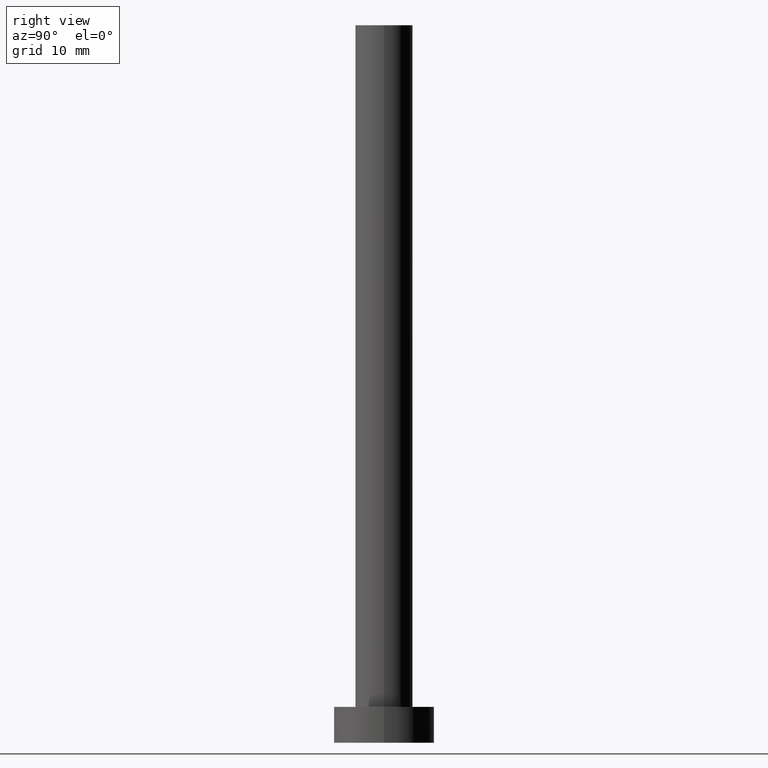
[diagram: clean part render]
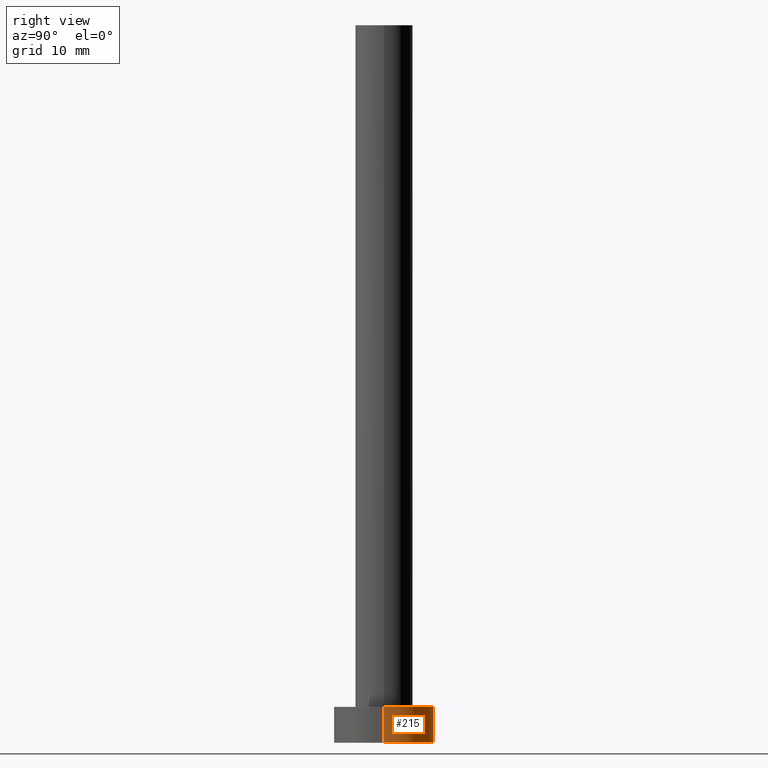
[diagram: same view with one face highlighted and labeled with its STEP entity id]
A machine part, right view. The second image highlights one B-rep face of the part: STEP entity #215.
In plain terms, the highlighted cylindrical surface (partial cylindrical patch) has radius 7 mm, axis along (-0, -0, -1).
Its self-contained STEP definition (entity closure, byte-faithful):
#2 = VECTOR ( 'NONE', #110, 1000.000000000000000 ) ;
#6 = CARTESIAN_POINT ( 'NONE',  ( 7.000000000000000000, 8.572527594031473190E-16, 0.000000000000000000 ) ) ;
#8 = LINE ( 'NONE', #171, #2 ) ;
#20 = CARTESIAN_POINT ( 'NONE',  ( 0.000000000000000000, 0.000000000000000000, 5.000000000000000000 ) ) ;
#27 = CARTESIAN_POINT ( 'NONE',  ( 0.000000000000000000, 0.000000000000000000, 5.000000000000000000 ) ) ;
#41 = AXIS2_PLACEMENT_3D ( 'NONE', #20, #67, #43 ) ;
#43 = DIRECTION ( 'NONE',  ( -1.000000000000000000, 0.000000000000000000, 0.000000000000000000 ) ) ;
#46 = CARTESIAN_POINT ( 'NONE',  ( -7.000000000000000000, 0.000000000000000000, 5.000000000000000000 ) ) ;
#60 = VERTEX_POINT ( 'NONE', #77 ) ;
#67 = DIRECTION ( 'NONE',  ( -0.000000000000000000, -0.000000000000000000, -1.000000000000000000 ) ) ;
#76 = CARTESIAN_POINT ( 'NONE',  ( -7.000000000000000000, 0.000000000000000000, 5.000000000000000000 ) ) ;
#77 = CARTESIAN_POINT ( 'NONE',  ( 7.000000000000000000, 8.572527594031473190E-16, 5.000000000000000000 ) ) ;
#78 = EDGE_CURVE ( 'NONE', #60, #115, #8, .T. ) ;
#79 = VECTOR ( 'NONE', #107, 1000.000000000000000 ) ;
#107 = DIRECTION ( 'NONE',  ( -0.000000000000000000, -0.000000000000000000, -1.000000000000000000 ) ) ;
#109 = CIRCLE ( 'NONE', #145, 7.000000000000000000 ) ;
#110 = DIRECTION ( 'NONE',  ( -0.000000000000000000, -0.000000000000000000, -1.000000000000000000 ) ) ;
#111 = CARTESIAN_POINT ( 'NONE',  ( 0.000000000000000000, 0.000000000000000000, 0.000000000000000000 ) ) ;
#112 = DIRECTION ( 'NONE',  ( 0.000000000000000000, 0.000000000000000000, 1.000000000000000000 ) ) ;
#115 = VERTEX_POINT ( 'NONE', #6 ) ;
#116 = ORIENTED_EDGE ( 'NONE', *, *, #240, .F. ) ;
#127 = AXIS2_PLACEMENT_3D ( 'NONE', #27, #139, #210 ) ;
#135 = CYLINDRICAL_SURFACE ( 'NONE', #41, 7.000000000000000000 ) ;
#139 = DIRECTION ( 'NONE',  ( 0.000000000000000000, 0.000000000000000000, 1.000000000000000000 ) ) ;
#145 = AXIS2_PLACEMENT_3D ( 'NONE', #111, #112, #241 ) ;
#158 = FACE_OUTER_BOUND ( 'NONE', #250, .T. ) ;
#160 = EDGE_CURVE ( 'NONE', #115, #228, #109, .T. ) ;
#171 = CARTESIAN_POINT ( 'NONE',  ( 7.000000000000000000, 8.572527594031473190E-16, 5.000000000000000000 ) ) ;
#181 = VERTEX_POINT ( 'NONE', #76 ) ;
#185 = LINE ( 'NONE', #46, #79 ) ;
#194 = ORIENTED_EDGE ( 'NONE', *, *, #230, .F. ) ;
#210 = DIRECTION ( 'NONE',  ( 1.000000000000000000, 0.000000000000000000, 0.000000000000000000 ) ) ;
#215 = ADVANCED_FACE ( 'NONE', ( #158 ), #135, .T. ) ;
#227 = ORIENTED_EDGE ( 'NONE', *, *, #78, .T. ) ;
#228 = VERTEX_POINT ( 'NONE', #229 ) ;
#229 = CARTESIAN_POINT ( 'NONE',  ( -7.000000000000000000, 0.000000000000000000, 0.000000000000000000 ) ) ;
#230 = EDGE_CURVE ( 'NONE', #181, #228, #185, .T. ) ;
#240 = EDGE_CURVE ( 'NONE', #60, #181, #248, .T. ) ;
#241 = DIRECTION ( 'NONE',  ( 1.000000000000000000, 0.000000000000000000, 0.000000000000000000 ) ) ;
#248 = CIRCLE ( 'NONE', #127, 7.000000000000000000 ) ;
#249 = ORIENTED_EDGE ( 'NONE', *, *, #160, .T. ) ;
#250 = EDGE_LOOP ( 'NONE', ( #116, #227, #249, #194 ) ) ;